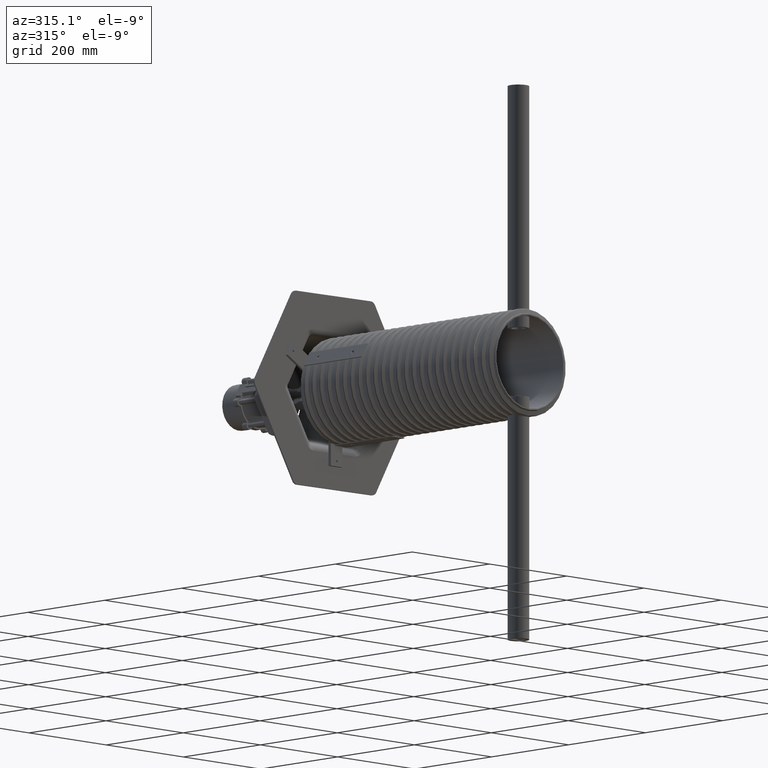
[diagram: clean part render]
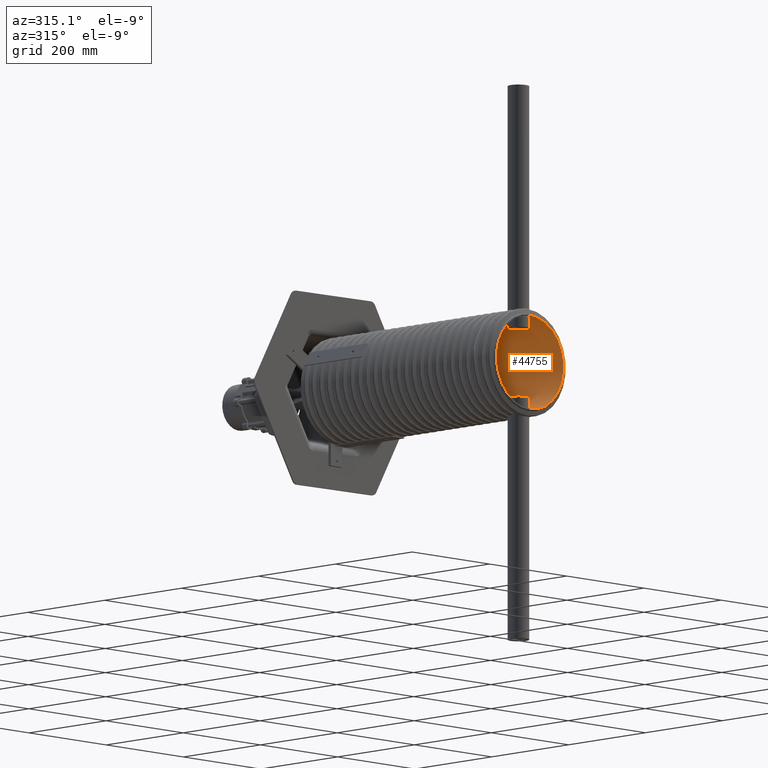
[diagram: same view with one face highlighted and labeled with its STEP entity id]
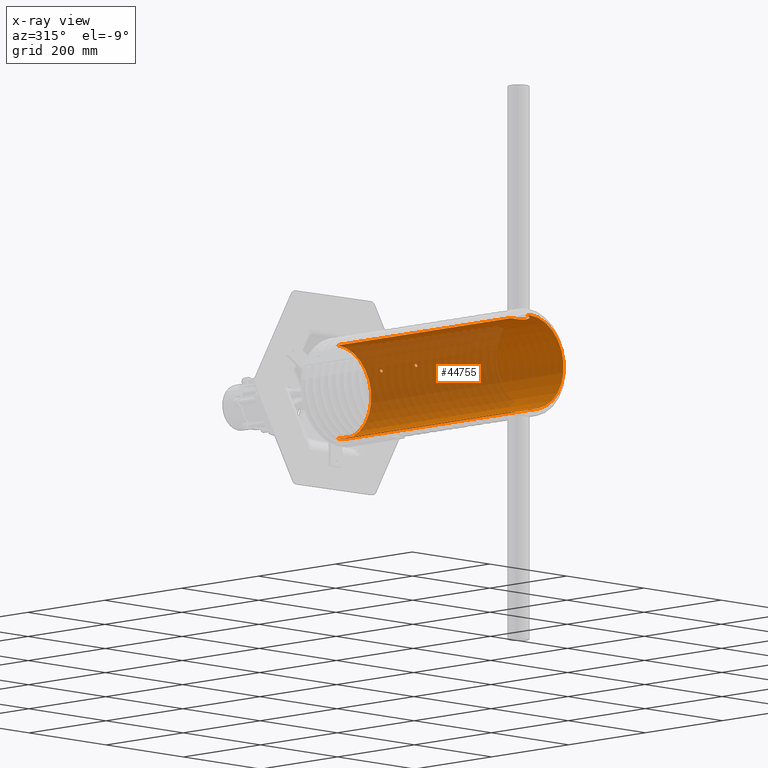
[diagram: x-ray of the same camera — body ghosted, the highlighted face saturated]
A machine part, auxiliary view. The second image highlights one B-rep face of the part: STEP entity #44755.
The next image is the same camera in x-ray: the body ghosted, the highlighted face saturated — about 63% of this face is hidden behind the body in this view.
In plain terms, the highlighted cylindrical surface (partial cylindrical patch) has radius 87 mm, axis along (0, 1, 0).
Its self-contained STEP definition (entity closure, byte-faithful):
#240 = CARTESIAN_POINT ( 'NONE',  ( 76.50852754800528999, -126.1696861162702419, 41.41807884321074340 ) ) ;
#390 = CARTESIAN_POINT ( 'NONE',  ( 74.85747038605444459, -125.1524743547578424, 44.33274442071717658 ) ) ;
#432 = EDGE_CURVE ( 'NONE', #14155, #42126, #5428, .T. ) ;
#433 = CARTESIAN_POINT ( 'NONE',  ( 17.93568807765784712, -461.1264908248124357, 85.13172591165675840 ) ) ;
#458 = CARTESIAN_POINT ( 'NONE',  ( 0.0000000000000000000, 0.0000000000000000000, 87.00000000000000000 ) ) ;
#592 = CARTESIAN_POINT ( 'NONE',  ( 9.153048669654680225, -452.2143374085724190, 86.51766697584275789 ) ) ;
#747 = CARTESIAN_POINT ( 'NONE',  ( 0.1977612686237654183, -124.9999999999999858, -87.00000000000000000 ) ) ;
#761 = CARTESIAN_POINT ( 'NONE',  ( 0.9670133609606378355, -130.8465917165744088, -86.99481306588286600 ) ) ;
#900 = CARTESIAN_POINT ( 'NONE',  ( 2.602268058680082596, -126.4943598475905588, -86.96114194050471724 ) ) ;
#906 = CIRCLE ( 'NONE', #31220, 87.00000000000000000 ) ;
#1046 = EDGE_CURVE ( 'NONE', #8157, #19798, #27075, .T. ) ;
#1281 = CARTESIAN_POINT ( 'NONE',  ( 1.065442716048124496E-14, -34.99999999999999289, -87.00000000000002842 ) ) ;
#1425 = CARTESIAN_POINT ( 'NONE',  ( 3.000000000000005773, -37.60383317793876756, -86.94826047713664252 ) ) ;
#1466 = CARTESIAN_POINT ( 'NONE',  ( 74.58135396072991341, -130.6035503350153704, 44.79563088316530184 ) ) ;
#1550 = CARTESIAN_POINT ( 'NONE',  ( 12.44619435417209274, -485.6588603546577474, 86.10550445194652980 ) ) ;
#1623 = CARTESIAN_POINT ( 'NONE',  ( 76.31515642615116235, -130.2618179307909259, 41.77339499878376472 ) ) ;
#1698 = CARTESIAN_POINT ( 'NONE',  ( 19.87258180282035624, -472.6109044968400781, 84.70035518799339513 ) ) ;
#1840 = CARTESIAN_POINT ( 'NONE',  ( 75.73064473570791222, -35.09619146409765023, 42.82413117425846849 ) ) ;
#1981 = CARTESIAN_POINT ( 'NONE',  ( 74.00964267075103464, -36.49362939127797034, 45.73384765430934351 ) ) ;
#2002 = EDGE_CURVE ( 'NONE', #31938, #14420, #5950, .T. ) ;
#2016 = CARTESIAN_POINT ( 'NONE',  ( 16.44260274255838183, -481.3906724499241250, -85.43228321057135588 ) ) ;
#2046 = CARTESIAN_POINT ( 'NONE',  ( 11.65606949360919664, -453.7345425611923702, -86.21738566143258709 ) ) ;
#2156 = CARTESIAN_POINT ( 'NONE',  ( 6.449053673449365753, -488.9430699716949107, -86.76292538942135479 ) ) ;
#2188 = CARTESIAN_POINT ( 'NONE',  ( 19.48279992951975714, -465.4335359864411430, -84.79055378684546440 ) ) ;
#2369 = CARTESIAN_POINT ( 'NONE',  ( 74.33347922500526295, -40.26006764310727704, 45.20567482684609928 ) ) ;
#2486 = EDGE_CURVE ( 'NONE', #31938, #8199, #8906, .T. ) ;
#2523 = CARTESIAN_POINT ( 'NONE',  ( 76.08514325843393067, -40.60304184144413142, 42.19096358836849703 ) ) ;
#2702 = CARTESIAN_POINT ( 'NONE',  ( 3.000000000000005329, -38.19827778290684961, -86.94826047713664252 ) ) ;
#2799 = CARTESIAN_POINT ( 'NONE',  ( 0.0000000000000000000, -500.0000000000000000, 0.0000000000000000000 ) ) ;
#2855 = CARTESIAN_POINT ( 'NONE',  ( 1.328175558697996195, -40.69706301862297693, -86.99004865439181344 ) ) ;
#3277 = VERTEX_POINT ( 'NONE', #44167 ) ;
#3449 = EDGE_CURVE ( 'NONE', #14420, #14919, #8409, .T. ) ;
#3490 = EDGE_CURVE ( 'NONE', #4430, #14919, #11066, .T. ) ;
#3805 = CARTESIAN_POINT ( 'NONE',  ( 76.31701063034780930, -125.7417889277396341, 41.77000115104774380 ) ) ;
#3885 = B_SPLINE_CURVE_WITH_KNOTS ( 'NONE', 3,
 ( #9048, #26937, #12662, #37737, #16298, #41292, #19908, #44870, #23480, #2016, #27092, #5598, #30665, #9204, #34278, #12820, #37884, #16464, #41439, #20049, #45030, #23642, #2156, #27240, #5761, #30820, #9351, #34435 ),
 .UNSPECIFIED., .F., .F.,
 ( 4, 2, 2, 2, 2, 2, 2, 2, 2, 2, 2, 2, 2, 4 ),
 ( 0.0000000000000000000, 0.003922192643568727516, 0.005883288965353091274, 0.007844385287137455032, 0.01176657793070633694, 0.01274712609159859428, 0.01372767425249085335, 0.01568877057427549987, 0.01961096321784479637, 0.02157205953962944289, 0.02353315586141409635, 0.02549425218319874287, 0.02745534850498339285, 0.03137754114855269283 ),
 .UNSPECIFIED. ) ;
#3960 = CARTESIAN_POINT ( 'NONE',  ( 74.58274914739598671, -125.3949918919166322, 44.79330421839682685 ) ) ;
#4007 = CARTESIAN_POINT ( 'NONE',  ( 16.98180350253650772, -459.4150645983413597, 85.32733462217871079 ) ) ;
#4022 = CARTESIAN_POINT ( 'NONE',  ( 3.000000000000000888, -128.1982777829068709, -86.94826047713664252 ) ) ;
#4090 = CARTESIAN_POINT ( 'NONE',  ( 76.79940238806720743, -38.00000000000000711, 40.87605402721430181 ) ) ;
#4126 = CARTESIAN_POINT ( 'NONE',  ( 0.0000000000000000000, 0.0000000000000000000, 0.0000000000000000000 ) ) ;
#4167 = CARTESIAN_POINT ( 'NONE',  ( 8.263927343287924998, -451.7841973257882842, 86.60713912971094430 ) ) ;
#4185 = CARTESIAN_POINT ( 'NONE',  ( 3.000000000000000888, -128.0000000000000000, -86.94826047713664252 ) ) ;
#4335 = CARTESIAN_POINT ( 'NONE',  ( 0.3904644600714122782, -130.9810291034154375, -86.99933940895986950 ) ) ;
#4430 = VERTEX_POINT ( 'NONE', #16022 ) ;
#4457 = EDGE_CURVE ( 'NONE', #8345, #37244, #4820, .T. ) ;
#4484 = CARTESIAN_POINT ( 'NONE',  ( 2.920420247024597682, -127.2102734355285634, -86.95109888176496327 ) ) ;
#4765 = VERTEX_POINT ( 'NONE', #458 ) ;
#4820 = B_SPLINE_CURVE_WITH_KNOTS ( 'NONE', 3,
 ( #34009, #34159, #12693, #37773, #16331, #41321, #19934, #44913, #23513, #2046, #27124, #5632, #30699, #9229, #34313, #12855, #37916, #16495, #41470, #20079, #45056, #23676, #2188, #27274, #5796, #30849 ),
 .UNSPECIFIED., .F., .F.,
 ( 4, 2, 2, 2, 2, 2, 2, 2, 2, 2, 2, 2, 4 ),
 ( 0.09410789661966965924, 0.09802708953459228491, 0.09998668599205359775, 0.1019462824495149106, 0.1058654753644375363, 0.1078250718218988491, 0.1097846682793601619, 0.1117442647368214748, 0.1137038611942827876, 0.1176230541092052745, 0.1195826505666665318, 0.1215422470241277753, 0.1254614399390502621 ),
 .UNSPECIFIED. ) ;
#4863 = CARTESIAN_POINT ( 'NONE',  ( 0.7763860699767505258, -35.09562983045843509, -86.99674659567382662 ) ) ;
#4900 = CARTESIAN_POINT ( 'NONE',  ( 73.79940238806725006, -128.1982327862185684, 46.07220644992094805 ) ) ;
#5030 = CARTESIAN_POINT ( 'NONE',  ( 20.00000000000000711, -470.0000000000000000, -84.66994744299775277 ) ) ;
#5047 = CARTESIAN_POINT ( 'NONE',  ( 74.85580443909081794, -130.8463173335569820, 44.33555159283618963 ) ) ;
#5124 = CARTESIAN_POINT ( 'NONE',  ( 13.68947363335681544, -484.5952376561857591, 85.91749047084744006 ) ) ;
#5194 = CARTESIAN_POINT ( 'NONE',  ( 76.50856317009625229, -129.8299900628122430, 41.41801024803085340 ) ) ;
#5257 = CARTESIAN_POINT ( 'NONE',  ( 76.75438500250986351, -37.22298340132054761, 40.96054022181824195 ) ) ;
#5283 = CARTESIAN_POINT ( 'NONE',  ( 20.00000000000000711, -470.0000000000000000, 84.66994744299775277 ) ) ;
#5411 = CARTESIAN_POINT ( 'NONE',  ( 75.44437575426293563, -35.00016604798047126, 43.32649659671813680 ) ) ;
#5428 = B_SPLINE_CURVE_WITH_KNOTS ( 'NONE', 3,
 ( #43132, #11060, #36151, #14702, #39709, #18309, #43286, #21892, #433, #25492, #4007, #29106, #7613, #32692, #11230, #36296, #14865, #39876, #18465, #43443, #22046, #592, #25633, #4167, #29258, #7764, #32843, #11389, #36455, #15010, #40030, #18622 ),
 .UNSPECIFIED., .F., .F.,
 ( 4, 2, 2, 2, 2, 2, 2, 2, 2, 2, 2, 2, 2, 2, 2, 4 ),
 ( 0.03137786550792306256, 0.03333796585246948108, 0.03529806619701589959, 0.03921826688610874356, 0.04117836723065515514, 0.04313846757520157366, 0.04509856791974799217, 0.04607861809202114245, 0.04705866826429428579, 0.05097886895338687302, 0.05293896929793311806, 0.05391901947020624059, 0.05489906964247936311, 0.05881927033157191564, 0.06077937067611817457, 0.06273947102066443349 ),
 .UNSPECIFIED. ) ;
#5568 = CARTESIAN_POINT ( 'NONE',  ( 73.84169468340768105, -37.20986324133727408, 46.00463697864076096 ) ) ;
#5598 = CARTESIAN_POINT ( 'NONE',  ( 15.86273847517259661, -482.1852893192017859, -85.54187958686931381 ) ) ;
#5632 = CARTESIAN_POINT ( 'NONE',  ( 13.19623296353511499, -454.9571973058318690, -85.99488191319461805 ) ) ;
#5761 = CARTESIAN_POINT ( 'NONE',  ( 4.549602195806198957, -489.4867962807920776, -86.88336742863832285 ) ) ;
#5787 = CARTESIAN_POINT ( 'NONE',  ( 76.79940238806719321, -128.0000000000000000, 40.87605402721430181 ) ) ;
#5796 = CARTESIAN_POINT ( 'NONE',  ( 20.00000000000001066, -468.6744326243409660, -84.66994744299773856 ) ) ;
#5812 = CARTESIAN_POINT ( 'NONE',  ( 73.79940238806726427, -38.19823278621854001, 46.07220644992096226 ) ) ;
#5950 = B_SPLINE_CURVE_WITH_KNOTS ( 'NONE', 3,
 ( #1281, #44123, #19155, #4863, #29942, #8449, #33531, #12078, #37164, #15721, #40709, #19311, #44281, #22888, #1425, #26499 ),
 .UNSPECIFIED., .F., .F.,
 ( 4, 2, 2, 2, 2, 2, 2, 4 ),
 ( 0.01407150590727147300, 0.01465731824862154427, 0.01524313058997161727, 0.01582894293132168853, 0.01641475527267175979, 0.01700056761402183453, 0.01758637995537190579, 0.01875800463807203097 ),
 .UNSPECIFIED. ) ;
#5959 = CARTESIAN_POINT ( 'NONE',  ( 74.58135396072991341, -40.60355033501538458, 44.79563088316532316 ) ) ;
#6045 = CARTESIAN_POINT ( 'NONE',  ( 0.0000000000000000000, 0.0000000000000000000, 87.00000000000002842 ) ) ;
#6118 = CARTESIAN_POINT ( 'NONE',  ( 76.31515642615116235, -40.26181793079090454, 41.77339499878374340 ) ) ;
#6397 = DIRECTION ( 'NONE',  ( 0.0000000000000000000, 0.0000000000000000000, 1.000000000000000000 ) ) ;
#6453 = CARTESIAN_POINT ( 'NONE',  ( 0.7778577919684809272, -40.90412366566275892, -86.99673819946036701 ) ) ;
#7026 = ORIENTED_EDGE ( 'NONE', *, *, #25109, .T. ) ;
#7334 = CARTESIAN_POINT ( 'NONE',  ( 3.000000000000000888, -128.0000000000000000, -86.94826047713664252 ) ) ;
#7413 = CARTESIAN_POINT ( 'NONE',  ( 76.08520940629190932, -125.3969834340961143, 42.19084642360594017 ) ) ;
#7565 = CARTESIAN_POINT ( 'NONE',  ( 74.33413251984855208, -125.7388231767254894, 45.20460098260357995 ) ) ;
#7613 = CARTESIAN_POINT ( 'NONE',  ( 15.87111535922370820, -457.8125865414918394, 85.54112789394520178 ) ) ;
#7764 = CARTESIAN_POINT ( 'NONE',  ( 6.454884838655692292, -451.0251785316796713, 86.76868292252339643 ) ) ;
#7785 = CARTESIAN_POINT ( 'NONE',  ( 2.846552530201100328, -128.9673828551963766, -86.95345203496104602 ) ) ;
#7926 = CARTESIAN_POINT ( 'NONE',  ( 0.3932834549787793677, -125.0194850217761484, -86.99932196106804838 ) ) ;
#7940 = CARTESIAN_POINT ( 'NONE',  ( 1.065442721291840705E-14, -131.0000000000000000, -87.00000000000002842 ) ) ;
#8085 = CARTESIAN_POINT ( 'NONE',  ( 3.000000000000000888, -128.0000000000000000, -86.94826047713664252 ) ) ;
#8157 = VERTEX_POINT ( 'NONE', #5787 ) ;
#8199 = VERTEX_POINT ( 'NONE', #20383 ) ;
#8345 = VERTEX_POINT ( 'NONE', #10635 ) ;
#8409 = B_SPLINE_CURVE_WITH_KNOTS ( 'NONE', 3,
 ( #27786, #2702, #31352, #9899, #34988, #13521, #38557, #17158, #42134, #20737, #45712, #24340, #2855, #27941, #6453, #31504, #10046, #35136 ),
 .UNSPECIFIED., .F., .F.,
 ( 4, 2, 2, 2, 2, 2, 2, 2, 4 ),
 ( 0.0000000000000000000, 0.0005863871771897364703, 0.001172774354379472941, 0.001759161531569209411, 0.002345548708758945881, 0.002931935885948682569, 0.003518323063138418822, 0.004104710240328155076, 0.004691097417517891763 ),
 .UNSPECIFIED. ) ;
#8449 = CARTESIAN_POINT ( 'NONE',  ( 1.329955233623715483, -35.30371981811131121, -86.99002392546769613 ) ) ;
#8484 = CARTESIAN_POINT ( 'NONE',  ( 73.80971652638993419, -128.3931496600908417, 46.05569672196235587 ) ) ;
#8495 = EDGE_CURVE ( 'NONE', #34463, #40103, #36951, .T. ) ;
#8574 = CARTESIAN_POINT ( 'NONE',  ( 4.552415771729019234, -489.4859548076487386, 86.88317981998778805 ) ) ;
#8652 = CARTESIAN_POINT ( 'NONE',  ( 75.14791676317973668, -130.9808994648600446, 43.83865996970049395 ) ) ;
#8735 = CARTESIAN_POINT ( 'NONE',  ( 15.89413165341288448, -482.2108768043417513, 85.53906183110785832 ) ) ;
#8811 = CARTESIAN_POINT ( 'NONE',  ( 76.65624155491612157, -129.3297224775155883, 41.14397046377807499 ) ) ;
#8869 = CARTESIAN_POINT ( 'NONE',  ( 76.65666974050583349, -36.67232357190236058, 41.14317161944785539 ) ) ;
#8906 = LINE ( 'NONE', #16139, #36392 ) ;
#9021 = CARTESIAN_POINT ( 'NONE',  ( 75.14811365699011958, -35.01918281462521065, 43.83831378645773924 ) ) ;
#9048 = CARTESIAN_POINT ( 'NONE',  ( 20.00000000000000711, -470.0000000000000000, -84.66994744299775277 ) ) ;
#9122 = ORIENTED_EDGE ( 'NONE', *, *, #2002, .T. ) ;
#9176 = CARTESIAN_POINT ( 'NONE',  ( 73.79940238806725006, -38.00000000000000711, 46.07220644992096226 ) ) ;
#9204 = CARTESIAN_POINT ( 'NONE',  ( 15.03457257848562634, -483.2057629161959085, -85.69212832042096295 ) ) ;
#9229 = CARTESIAN_POINT ( 'NONE',  ( 14.59621513080994148, -456.3116166269289238, -85.76810036495584200 ) ) ;
#9236 = B_SPLINE_CURVE_WITH_KNOTS ( 'NONE', 3,
 ( #23137, #44529, #26750, #5257, #30341, #8869, #33952, #12474, #37554, #16115, #41117, #19726, #44679, #23299, #1840, #26904, #5411, #30502, #9021, #34096, #12634, #37704, #16269, #41263, #19877, #44847, #23457, #1981, #27057, #5568, #30639, #9176 ),
 .UNSPECIFIED., .F., .F.,
 ( 4, 2, 2, 2, 2, 2, 2, 2, 2, 2, 2, 2, 2, 2, 2, 4 ),
 ( 0.009380065662061867066, 0.009966186848062500575, 0.01055230803406313408, 0.01113842922006376759, 0.01172455040606439937, 0.01231067159206503288, 0.01289679277806566639, 0.01348291396406629990, 0.01406903515006693167, 0.01465515633606756518, 0.01524127752206819869, 0.01582739870806883220, 0.01641351989406946571, 0.01699964108007009922, 0.01758576226607073273, 0.01875800463807199628 ),
 .UNSPECIFIED. ) ;
#9351 = CARTESIAN_POINT ( 'NONE',  ( 1.309825171448685932, -490.0000000000001705, -87.00000000000004263 ) ) ;
#9395 = ORIENTED_EDGE ( 'NONE', *, *, #432, .T. ) ;
#9501 = DIRECTION ( 'NONE',  ( -0.0000000000000000000, 1.000000000000000000, -0.0000000000000000000 ) ) ;
#9565 = CARTESIAN_POINT ( 'NONE',  ( 74.85580443909074688, -40.84631733355695360, 44.33555159283618963 ) ) ;
#9717 = CARTESIAN_POINT ( 'NONE',  ( 76.50856317009625229, -39.82999006281225718, 41.41801024803083919 ) ) ;
#9899 = CARTESIAN_POINT ( 'NONE',  ( 2.904276259442632568, -38.77679632077867922, -86.95151887674923330 ) ) ;
#10046 = CARTESIAN_POINT ( 'NONE',  ( 0.1957350792040908061, -41.00000000000000000, -87.00000000000002842 ) ) ;
#10056 = ORIENTED_EDGE ( 'NONE', *, *, #39168, .T. ) ;
#10131 = CYLINDRICAL_SURFACE ( 'NONE', #19567, 87.00000000000002842 ) ;
#10279 = EDGE_CURVE ( 'NONE', #19798, #8157, #33028, .T. ) ;
#10432 = AXIS2_PLACEMENT_3D ( 'NONE', #2799, #27884, #6397 ) ;
#10635 = CARTESIAN_POINT ( 'NONE',  ( 1.063745155831758435E-14, -449.9999999999999432, -87.00000000000002842 ) ) ;
#10687 = ORIENTED_EDGE ( 'NONE', *, *, #15347, .F. ) ;
#11015 = CARTESIAN_POINT ( 'NONE',  ( 75.82434590255604689, -125.1541199586312700, 42.65795904007651984 ) ) ;
#11060 = CARTESIAN_POINT ( 'NONE',  ( 20.00000000000000355, -469.3454529708039900, 84.66994744299775277 ) ) ;
#11066 = LINE ( 'NONE', #42286, #38533 ) ;
#11173 = CARTESIAN_POINT ( 'NONE',  ( 74.12471874090687152, -126.1664020456541095, 45.54709761446144256 ) ) ;
#11230 = CARTESIAN_POINT ( 'NONE',  ( 15.03680291996756324, -456.8090160800728086, 85.69098264823465172 ) ) ;
#11268 = FACE_BOUND ( 'NONE', #20283, .T. ) ;
#11389 = CARTESIAN_POINT ( 'NONE',  ( 3.278230018686332237, -450.2595952755725079, 86.94059969439435065 ) ) ;
#11409 = CARTESIAN_POINT ( 'NONE',  ( 2.603662751964805455, -129.5031304939267898, -86.96109943126580788 ) ) ;
#11541 = CARTESIAN_POINT ( 'NONE',  ( 0.9664296006202856004, -125.1531207314440195, -86.99482201432405759 ) ) ;
#11590 = EDGE_CURVE ( 'NONE', #42126, #4765, #31411, .T. ) ;
#11962 = CARTESIAN_POINT ( 'NONE',  ( 73.79940238806726427, -128.0000000000000000, 46.07220644992096226 ) ) ;
#11973 = ORIENTED_EDGE ( 'NONE', *, *, #37967, .F. ) ;
#12078 = CARTESIAN_POINT ( 'NONE',  ( 1.827883023717659983, -35.61312582596917053, -86.98094833108328316 ) ) ;
#12116 = CARTESIAN_POINT ( 'NONE',  ( 73.88058512205020634, -128.9671681103031347, 45.94197230440191504 ) ) ;
#12194 = CARTESIAN_POINT ( 'NONE',  ( 6.446876492459776564, -488.9438862687932783, 86.76310259039173900 ) ) ;
#12263 = CARTESIAN_POINT ( 'NONE',  ( 75.44152265598053475, -131.0000693487146464, 43.33145454215289760 ) ) ;
#12350 = CARTESIAN_POINT ( 'NONE',  ( 17.32928541080693563, -480.0061066625700619, 85.25722672185770534 ) ) ;
#12351 = DIRECTION ( 'NONE',  ( -0.0000000000000000000, 1.000000000000000000, -0.0000000000000000000 ) ) ;
#12418 = CARTESIAN_POINT ( 'NONE',  ( 76.75408782920408157, -128.7790907283381614, 40.96109707243764575 ) ) ;
#12474 = CARTESIAN_POINT ( 'NONE',  ( 76.50852754800526156, -36.16968611627021346, 41.41807884321073630 ) ) ;
#12634 = CARTESIAN_POINT ( 'NONE',  ( 74.85747038605437353, -35.15247435475782112, 44.33274442071719079 ) ) ;
#12662 = CARTESIAN_POINT ( 'NONE',  ( 19.86932935718193605, -472.6300672915212431, -84.70111310406073812 ) ) ;
#12693 = CARTESIAN_POINT ( 'NONE',  ( 2.619961150343538048, -450.1292549473155304, -86.97002176340042467 ) ) ;
#12820 = CARTESIAN_POINT ( 'NONE',  ( 13.21641345727041994, -485.0670808111260044, -85.99532151259552393 ) ) ;
#12855 = CARTESIAN_POINT ( 'NONE',  ( 15.86064401229919696, -457.7989936424120287, -85.54307023905913354 ) ) ;
#13028 = CARTESIAN_POINT ( 'NONE',  ( 73.80971652638991998, -38.39314966009087016, 46.05569672196235587 ) ) ;
#13039 = CARTESIAN_POINT ( 'NONE',  ( 1.065442715258197524E-14, 0.0000000000000000000, -87.00000000000002842 ) ) ;
#13193 = CARTESIAN_POINT ( 'NONE',  ( 75.14791676317973668, -40.98089946486001622, 43.83865996970049395 ) ) ;
#13345 = CARTESIAN_POINT ( 'NONE',  ( 76.65624155491616420, -39.32972247751556694, 41.14397046377807499 ) ) ;
#13521 = CARTESIAN_POINT ( 'NONE',  ( 2.695869573999903235, -39.33078102470084048, -86.95825417603235508 ) ) ;
#13571 = VERTEX_POINT ( 'NONE', #4090 ) ;
#14057 = CARTESIAN_POINT ( 'NONE',  ( 73.79940238806725006, -38.00000000000000711, 46.07220644992096226 ) ) ;
#14155 = VERTEX_POINT ( 'NONE', #40046 ) ;
#14420 = VERTEX_POINT ( 'NONE', #24080 ) ;
#14495 = CARTESIAN_POINT ( 'NONE',  ( 76.79940238806719321, -128.0000000000000000, 40.87605402721430181 ) ) ;
#14568 = CARTESIAN_POINT ( 'NONE',  ( 73.79940238806726427, -128.0000000000000000, 46.07220644992096226 ) ) ;
#14656 = CARTESIAN_POINT ( 'NONE',  ( 75.54115247530934596, -125.0197078249870373, 43.15751435866254582 ) ) ;
#14702 = CARTESIAN_POINT ( 'NONE',  ( 19.83748455329809701, -467.3707986025272589, 84.70819734229991127 ) ) ;
#14814 = CARTESIAN_POINT ( 'NONE',  ( 73.96033536175043821, -126.6685945314221726, 45.81347419145316024 ) ) ;
#14865 = CARTESIAN_POINT ( 'NONE',  ( 14.36887743971917430, -456.0844374039774038, 85.80553956706694407 ) ) ;
#14919 = VERTEX_POINT ( 'NONE', #38691 ) ;
#15010 = CARTESIAN_POINT ( 'NONE',  ( 1.308676280650063584, -450.0319726820615642, 86.99263266915005488 ) ) ;
#15028 = CARTESIAN_POINT ( 'NONE',  ( 2.259031727146277202, -129.9837076864392316, -86.97077647705549452 ) ) ;
#15172 = CARTESIAN_POINT ( 'NONE',  ( 1.502188651247658102, -125.3958199126954725, -86.98718272354290093 ) ) ;
#15347 = EDGE_CURVE ( 'NONE', #35611, #25483, #18194, .T. ) ;
#15575 = B_SPLINE_CURVE_WITH_KNOTS ( 'NONE', 3,
 ( #25792, #747, #7926, #32996, #11541, #36618, #15172, #40179, #18788, #43756, #22344, #900, #25954, #4484, #29561, #8085 ),
 .UNSPECIFIED., .F., .F.,
 ( 4, 2, 2, 2, 2, 2, 2, 4 ),
 ( 0.01407150590727147994, 0.01465731824862153906, 0.01524313058997159992, 0.01582894293132165731, 0.01641475527267171816, 0.01700056761402177902, 0.01758637995537183640, 0.01875800463807203444 ),
 .UNSPECIFIED. ) ;
#15620 = EDGE_CURVE ( 'NONE', #4430, #34463, #15575, .T. ) ;
#15721 = CARTESIAN_POINT ( 'NONE',  ( 2.259108242737366101, -36.01638582184538251, -86.97077440326684439 ) ) ;
#15758 = CARTESIAN_POINT ( 'NONE',  ( 74.00859791401364873, -129.5028216664077831, 45.73553649436839663 ) ) ;
#15837 = CARTESIAN_POINT ( 'NONE',  ( 8.887061375591693846, -487.9649167705670152, 86.55343207753504942 ) ) ;
#15864 = LINE ( 'NONE', #17074, #24243 ) ;
#15914 = CARTESIAN_POINT ( 'NONE',  ( 75.73046701392281932, -130.9039507468424119, 42.82444843619278174 ) ) ;
#15989 = CARTESIAN_POINT ( 'NONE',  ( 18.22357876429281376, -478.2659057817798498, 85.07036139988984758 ) ) ;
#16022 = CARTESIAN_POINT ( 'NONE',  ( 1.065442716031716189E-14, -125.0000000000000000, -87.00000000000002842 ) ) ;
#16060 = CARTESIAN_POINT ( 'NONE',  ( 76.79940238806722164, -128.1958038405141735, 40.87605402721430892 ) ) ;
#16115 = CARTESIAN_POINT ( 'NONE',  ( 76.31701063034780930, -35.74178892773961991, 41.77000115104772959 ) ) ;
#16139 = CARTESIAN_POINT ( 'NONE',  ( 1.065442715258197524E-14, 0.0000000000000000000, -87.00000000000002842 ) ) ;
#16269 = CARTESIAN_POINT ( 'NONE',  ( 74.58274914739595829, -35.39499189191658957, 44.79330421839681975 ) ) ;
#16298 = CARTESIAN_POINT ( 'NONE',  ( 19.32674222794570440, -475.1874856049225855, -84.82638459885380655 ) ) ;
#16331 = CARTESIAN_POINT ( 'NONE',  ( 5.181032938413754785, -450.6714329994567834, -86.84790388004643091 ) ) ;
#16464 = CARTESIAN_POINT ( 'NONE',  ( 10.57214535552478374, -486.9900586151105699, -86.35701146036362275 ) ) ;
#16495 = CARTESIAN_POINT ( 'NONE',  ( 17.34978779493604151, -459.9645217099201773, -85.25572906038134136 ) ) ;
#16521 = LINE ( 'NONE', #44941, #27145 ) ;
#16666 = CARTESIAN_POINT ( 'NONE',  ( 73.88058512205020634, -38.96716811030312044, 45.94197230440192214 ) ) ;
#16823 = CARTESIAN_POINT ( 'NONE',  ( 75.44152265598053475, -41.00006934871470321, 43.33145454215289760 ) ) ;
#16979 = CARTESIAN_POINT ( 'NONE',  ( 76.75408782920410999, -38.77909072833811877, 40.96109707243762443 ) ) ;
#17074 = CARTESIAN_POINT ( 'NONE',  ( 1.065442715258197524E-14, 0.0000000000000000000, -87.00000000000002842 ) ) ;
#17158 = CARTESIAN_POINT ( 'NONE',  ( 2.385816412841615719, -39.82930070025603442, -86.96734878139427849 ) ) ;
#17815 = ORIENTED_EDGE ( 'NONE', *, *, #15620, .T. ) ;
#18108 = CARTESIAN_POINT ( 'NONE',  ( 76.72725056532677002, -127.0333639042235347, 41.01139606618975364 ) ) ;
#18194 = CIRCLE ( 'NONE', #10432, 87.00000000000004263 ) ;
#18261 = CARTESIAN_POINT ( 'NONE',  ( 75.24654654386196739, -124.9998360388579357, 43.66916959959588240 ) ) ;
#18309 = CARTESIAN_POINT ( 'NONE',  ( 19.35463945344871206, -464.7930587308597410, 84.82020645111926171 ) ) ;
#18413 = CARTESIAN_POINT ( 'NONE',  ( 73.79940238806725006, -127.6036243158252574, 46.07220644992096226 ) ) ;
#18465 = CARTESIAN_POINT ( 'NONE',  ( 12.20405441609415931, -454.1017776374173422, 86.14667400072185899 ) ) ;
#18622 = CARTESIAN_POINT ( 'NONE',  ( -8.690192706110534338E-21, -449.9999999999999432, 87.00000000000002842 ) ) ;
#18646 = CARTESIAN_POINT ( 'NONE',  ( 1.830979428494086347, -130.3846284622217979, -86.98088549283956183 ) ) ;
#18712 = ORIENTED_EDGE ( 'NONE', *, *, #21090, .F. ) ;
#18788 = CARTESIAN_POINT ( 'NONE',  ( 1.982276411353747658, -125.7397178297455014, -86.97752439903841548 ) ) ;
#18870 = ORIENTED_EDGE ( 'NONE', *, *, #8495, .T. ) ;
#19092 = CARTESIAN_POINT ( 'NONE',  ( -8.690192706110534338E-21, -449.9999999999999432, 87.00000000000002842 ) ) ;
#19155 = CARTESIAN_POINT ( 'NONE',  ( 0.3932834549787774248, -35.01948502177612710, -86.99932196106803417 ) ) ;
#19311 = CARTESIAN_POINT ( 'NONE',  ( 2.602268058680075935, -36.49435984759050200, -86.96114194050473145 ) ) ;
#19351 = CARTESIAN_POINT ( 'NONE',  ( 74.18921739149865857, -129.9833362210781900, 45.44204213150846527 ) ) ;
#19434 = CARTESIAN_POINT ( 'NONE',  ( 11.39145300411179029, -486.4420625262272893, 86.25143293087305096 ) ) ;
#19509 = CARTESIAN_POINT ( 'NONE',  ( 75.99981041618447364, -130.6970129253573987, 42.34456055721732071 ) ) ;
#19567 = AXIS2_PLACEMENT_3D ( 'NONE', #4126, #32649, #22001 ) ;
#19586 = CARTESIAN_POINT ( 'NONE',  ( 18.94318157767786559, -476.4487187474474013, 84.91286216710545887 ) ) ;
#19726 = CARTESIAN_POINT ( 'NONE',  ( 76.08520940629190932, -35.39698343409607872, 42.19084642360594017 ) ) ;
#19798 = VERTEX_POINT ( 'NONE', #14568 ) ;
#19877 = CARTESIAN_POINT ( 'NONE',  ( 74.33413251984853787, -35.73882317672547515, 45.20460098260359416 ) ) ;
#19908 = CARTESIAN_POINT ( 'NONE',  ( 18.71972115362246214, -477.0711701160582265, -84.96256988888856654 ) ) ;
#19934 = CARTESIAN_POINT ( 'NONE',  ( 7.064594847878960415, -451.2778712614974665, -86.71480984849088713 ) ) ;
#20049 = CARTESIAN_POINT ( 'NONE',  ( 8.855154533623361246, -487.9447108671516844, -86.55011135078153472 ) ) ;
#20079 = CARTESIAN_POINT ( 'NONE',  ( 18.71472867607998580, -462.9159941273674121, -84.96366590386655560 ) ) ;
#20252 = CARTESIAN_POINT ( 'NONE',  ( 74.00859791401364873, -39.50282166640779025, 45.73553649436840374 ) ) ;
#20283 = EDGE_LOOP ( 'NONE', ( #44206, #41173 ) ) ;
#20383 = CARTESIAN_POINT ( 'NONE',  ( 1.065442715258197367E-14, 0.0000000000000000000, -87.00000000000000000 ) ) ;
#20410 = CARTESIAN_POINT ( 'NONE',  ( 75.73046701392281932, -40.90395074684244037, 42.82444843619278174 ) ) ;
#20559 = CARTESIAN_POINT ( 'NONE',  ( 76.79940238806719321, -38.19580384051417354, 40.87605402721430181 ) ) ;
#20737 = CARTESIAN_POINT ( 'NONE',  ( 1.982091530921936240, -40.26044988719925755, -86.97752869867736081 ) ) ;
#21008 = ORIENTED_EDGE ( 'NONE', *, *, #29802, .T. ) ;
#21090 = EDGE_CURVE ( 'NONE', #8345, #40103, #25055, .T. ) ;
#21692 = CARTESIAN_POINT ( 'NONE',  ( 76.61277069364122383, -126.4982106329325120, 41.22493674064100588 ) ) ;
#21842 = CARTESIAN_POINT ( 'NONE',  ( 74.95421263033217940, -125.0950905450511357, 44.16902478899427820 ) ) ;
#21892 = CARTESIAN_POINT ( 'NONE',  ( 18.21962737294205326, -461.7249487878594891, 85.07121474615111367 ) ) ;
#21957 = ORIENTED_EDGE ( 'NONE', *, *, #11590, .T. ) ;
#22001 = DIRECTION ( 'NONE',  ( 0.0000000000000000000, 0.0000000000000000000, 1.000000000000000000 ) ) ;
#22046 = CARTESIAN_POINT ( 'NONE',  ( 10.02251858750657654, -452.6800260905570212, 86.42273495285058971 ) ) ;
#22207 = CARTESIAN_POINT ( 'NONE',  ( 1.328175558697991088, -130.6970630186229698, -86.99004865439181344 ) ) ;
#22344 = CARTESIAN_POINT ( 'NONE',  ( 2.383208349763799472, -126.1672236144607524, -86.96742105298658032 ) ) ;
#22888 = CARTESIAN_POINT ( 'NONE',  ( 2.920420247024601679, -37.21027343552858468, -86.95109888176494906 ) ) ;
#22923 = CARTESIAN_POINT ( 'NONE',  ( 74.41191192994477888, -130.3842467563464709, 45.07653788576293152 ) ) ;
#23002 = CARTESIAN_POINT ( 'NONE',  ( 12.18609127885416932, -485.8621227960242095, 86.14273024893560660 ) ) ;
#23083 = CARTESIAN_POINT ( 'NONE',  ( 76.24230152971249197, -130.3858190896615383, 41.90629893731784961 ) ) ;
#23104 = EDGE_LOOP ( 'NONE', ( #11973, #10687, #41938, #10056, #9395, #21957, #7026, #24188, #9122, #45334, #41199, #17815, #18870, #18712, #25299, #21008 ) ) ;
#23137 = CARTESIAN_POINT ( 'NONE',  ( 76.79940238806720743, -38.00000000000000711, 40.87605402721430181 ) ) ;
#23165 = CARTESIAN_POINT ( 'NONE',  ( 19.48683228377942811, -474.5494450204614623, 84.78962664538839533 ) ) ;
#23299 = CARTESIAN_POINT ( 'NONE',  ( 75.82434590255603268, -35.15411995863131978, 42.65795904007651984 ) ) ;
#23457 = CARTESIAN_POINT ( 'NONE',  ( 74.12471874090688573, -36.16640204565412375, 45.54709761446144256 ) ) ;
#23480 = CARTESIAN_POINT ( 'NONE',  ( 17.35022074853515406, -480.0337182018358249, -85.25559824616101423 ) ) ;
#23513 = CARTESIAN_POINT ( 'NONE',  ( 10.02216370289576730, -452.6427974129937866, -86.42778731426926697 ) ) ;
#23547 = DIRECTION ( 'NONE',  ( -0.0000000000000000000, 1.000000000000000000, -0.0000000000000000000 ) ) ;
#23642 = CARTESIAN_POINT ( 'NONE',  ( 7.063398055590781155, -488.7225141374667601, -86.71489532539015954 ) ) ;
#23676 = CARTESIAN_POINT ( 'NONE',  ( 19.32076070964772896, -464.7902530329332080, -84.82774908021033866 ) ) ;
#23848 = CARTESIAN_POINT ( 'NONE',  ( 74.18921739149865857, -39.98333622107818286, 45.44204213150847949 ) ) ;
#23994 = VERTEX_POINT ( 'NONE', #14057 ) ;
#24005 = CARTESIAN_POINT ( 'NONE',  ( 75.99981041618447364, -40.69701292535741288, 42.34456055721732071 ) ) ;
#24080 = CARTESIAN_POINT ( 'NONE',  ( 3.000000000000005773, -38.00000000000000000, -86.94826047713664252 ) ) ;
#24188 = ORIENTED_EDGE ( 'NONE', *, *, #2486, .F. ) ;
#24243 = VECTOR ( 'NONE', #35045, 1000.000000000000000 ) ;
#24340 = CARTESIAN_POINT ( 'NONE',  ( 1.502852007445170113, -40.60391520870494020, -86.98717355236777848 ) ) ;
#24540 = ORIENTED_EDGE ( 'NONE', *, *, #45933, .T. ) ;
#25055 = LINE ( 'NONE', #13039, #34583 ) ;
#25109 = EDGE_CURVE ( 'NONE', #4765, #8199, #906, .T. ) ;
#25281 = CARTESIAN_POINT ( 'NONE',  ( 76.44935817606007333, -126.0185571830292588, 41.52727708602657231 ) ) ;
#25299 = ORIENTED_EDGE ( 'NONE', *, *, #4457, .T. ) ;
#25435 = CARTESIAN_POINT ( 'NONE',  ( 74.67139823330761317, -125.3029380678984381, 44.64544082383363133 ) ) ;
#25483 = VERTEX_POINT ( 'NONE', #29093 ) ;
#25492 = CARTESIAN_POINT ( 'NONE',  ( 17.31739205085583677, -459.9732355937658212, 85.25964811136300625 ) ) ;
#25507 = CARTESIAN_POINT ( 'NONE',  ( 2.980536338121446249, -128.3932381622821026, -86.94893822642106329 ) ) ;
#25633 = CARTESIAN_POINT ( 'NONE',  ( 8.857833680266107734, -452.0654873304653734, 86.54841319088986040 ) ) ;
#25792 = CARTESIAN_POINT ( 'NONE',  ( 1.065442716031716189E-14, -125.0000000000000000, -87.00000000000002842 ) ) ;
#25808 = CARTESIAN_POINT ( 'NONE',  ( 0.7778577919684781516, -130.9041236656627518, -86.99673819946038122 ) ) ;
#25954 = CARTESIAN_POINT ( 'NONE',  ( 2.695778554777918945, -126.6692451014310734, -86.95825659921560202 ) ) ;
#26293 = CARTESIAN_POINT ( 'NONE',  ( 1.326567216152747974, -490.0000000000000568, 87.00000000000004263 ) ) ;
#26348 = B_SPLINE_CURVE_WITH_KNOTS ( 'NONE', 3,
 ( #37788, #5812, #13028, #38077, #16666, #41648, #20252, #45219, #23848, #2369, #27458, #5959, #31025, #9565, #34638, #13193, #38237, #16823, #41803, #20410, #45363, #24005, #2523, #27604, #6118, #31178, #9717, #34800, #13345, #38390, #16979, #41952, #20559, #45529 ),
 .UNSPECIFIED., .F., .F.,
 ( 4, 2, 2, 2, 2, 2, 2, 2, 2, 2, 2, 2, 2, 2, 2, 2, 4 ),
 ( 0.0000000000000000000, 0.0005862541038788666916, 0.001172508207757733383, 0.001758762311636600075, 0.002345016415515466766, 0.002931270519394333675, 0.003517524623273200150, 0.004103778727152066624, 0.004690032831030933533, 0.005276286934909800441, 0.005862541038788667350, 0.006448795142667533391, 0.007035049246546400299, 0.007621303350425267208, 0.008207557454304133249, 0.008793811558183000157, 0.009380065662061867066 ),
 .UNSPECIFIED. ) ;
#26499 = CARTESIAN_POINT ( 'NONE',  ( 3.000000000000005773, -38.00000000000000000, -86.94826047713664252 ) ) ;
#26535 = CARTESIAN_POINT ( 'NONE',  ( 74.67115675448698653, -130.6967263988083516, 44.64583902460869780 ) ) ;
#26611 = CARTESIAN_POINT ( 'NONE',  ( 13.20663325987711545, -485.0338113588372266, 85.99329881591437186 ) ) ;
#26687 = CARTESIAN_POINT ( 'NONE',  ( 76.44930644313291168, -129.9818178777206015, 41.52737861262482255 ) ) ;
#26750 = CARTESIAN_POINT ( 'NONE',  ( 76.79048662508650125, -37.60967540099149176, 40.89281888374914331 ) ) ;
#26769 = CARTESIAN_POINT ( 'NONE',  ( 20.00000000000001421, -471.3097727820329510, 84.66994744299775277 ) ) ;
#26904 = CARTESIAN_POINT ( 'NONE',  ( 75.54115247530936017, -35.01970782498703727, 43.15751435866253871 ) ) ;
#26937 = CARTESIAN_POINT ( 'NONE',  ( 20.00000000000001421, -471.3265819576192257, -84.66994744299776698 ) ) ;
#27057 = CARTESIAN_POINT ( 'NONE',  ( 73.96033536175039558, -36.66859453142214420, 45.81347419145315314 ) ) ;
#27075 = B_SPLINE_CURVE_WITH_KNOTS ( 'NONE', 3,
 ( #14495, #35943, #32334, #39523, #18108, #43080, #21692, #240, #25281, #3805, #28913, #7413, #32483, #11015, #36103, #14656, #39670, #18261, #43236, #21842, #390, #25435, #3960, #29065, #7565, #32647, #11173, #36251, #14814, #39825, #18413, #43396 ),
 .UNSPECIFIED., .F., .F.,
 ( 4, 2, 2, 2, 2, 2, 2, 2, 2, 2, 2, 2, 2, 2, 2, 4 ),
 ( 0.009380065662061854923, 0.009966186848062483228, 0.01055230803406310980, 0.01113842922006373810, 0.01172455040606436641, 0.01231067159206499471, 0.01289679277806562302, 0.01348291396406624959, 0.01406903515006687790, 0.01465515633606750620, 0.01524127752206813277, 0.01582739870806876281, 0.01641351989406938938, 0.01699964108007001595, 0.01758576226607064252, 0.01875800463807197546 ),
 .UNSPECIFIED. ) ;
#27092 = CARTESIAN_POINT ( 'NONE',  ( 16.25406868726553355, -481.6581730487254163, -85.46838530296351166 ) ) ;
#27124 = CARTESIAN_POINT ( 'NONE',  ( 12.18679603846159409, -454.1283750157554664, -86.14373036970894759 ) ) ;
#27145 = VECTOR ( 'NONE', #23547, 1000.000000000000000 ) ;
#27240 = CARTESIAN_POINT ( 'NONE',  ( 5.194072442968593606, -489.3249011560927784, -86.84709049168269246 ) ) ;
#27274 = CARTESIAN_POINT ( 'NONE',  ( 19.86949840125884137, -467.3672485864288433, -84.70108058092807823 ) ) ;
#27458 = CARTESIAN_POINT ( 'NONE',  ( 74.41191192994477888, -40.38424675634648509, 45.07653788576294573 ) ) ;
#27533 = DIRECTION ( 'NONE',  ( -0.0000000000000000000, 1.000000000000000000, -0.0000000000000000000 ) ) ;
#27604 = CARTESIAN_POINT ( 'NONE',  ( 76.24230152971249197, -40.38581908966158096, 41.90629893731784961 ) ) ;
#27786 = CARTESIAN_POINT ( 'NONE',  ( 3.000000000000005773, -38.00000000000000000, -86.94826047713664252 ) ) ;
#27884 = DIRECTION ( 'NONE',  ( -0.0000000000000000000, 1.000000000000000000, -0.0000000000000000000 ) ) ;
#27941 = CARTESIAN_POINT ( 'NONE',  ( 0.9670133609606416103, -40.84659171657439458, -86.99481306588282337 ) ) ;
#28913 = CARTESIAN_POINT ( 'NONE',  ( 76.24289715199158479, -125.6150706057248811, 41.90521741037056813 ) ) ;
#29065 = CARTESIAN_POINT ( 'NONE',  ( 74.41436665575851350, -125.6122360639628539, 45.07248172008696940 ) ) ;
#29093 = CARTESIAN_POINT ( 'NONE',  ( 1.065442715258197840E-14, -500.0000000000000000, -87.00000000000004263 ) ) ;
#29106 = CARTESIAN_POINT ( 'NONE',  ( 16.25866558600420930, -458.3347395649077498, 85.46807285347264838 ) ) ;
#29258 = CARTESIAN_POINT ( 'NONE',  ( 7.964475106133751758, -451.6513223082435502, 86.63520648923932299 ) ) ;
#29276 = CARTESIAN_POINT ( 'NONE',  ( 2.904276259442625907, -128.7767963207786863, -86.95151887674923330 ) ) ;
#29428 = CARTESIAN_POINT ( 'NONE',  ( 0.1957350792040912502, -131.0000000000000284, -87.00000000000002842 ) ) ;
#29561 = CARTESIAN_POINT ( 'NONE',  ( 3.000000000000000888, -127.6038331779387818, -86.94826047713664252 ) ) ;
#29713 = CARTESIAN_POINT ( 'NONE',  ( 1.065442721543171790E-14, -490.0000000000000000, -87.00000000000002842 ) ) ;
#29802 = EDGE_CURVE ( 'NONE', #37244, #40673, #3885, .T. ) ;
#29942 = CARTESIAN_POINT ( 'NONE',  ( 0.9664296006202920397, -35.15312073144402660, -86.99482201432405759 ) ) ;
#29990 = CARTESIAN_POINT ( 'NONE',  ( 1.065442716048124496E-14, -34.99999999999999289, -87.00000000000002842 ) ) ;
#30051 = CARTESIAN_POINT ( 'NONE',  ( 2.630089170235748064, -489.8693313288165427, 86.96969777411382552 ) ) ;
#30124 = CARTESIAN_POINT ( 'NONE',  ( 74.95201164404043936, -130.9038864988685020, 44.17276822088961552 ) ) ;
#30204 = CARTESIAN_POINT ( 'NONE',  ( 15.06791242405785880, -483.2154688746402940, 85.69028792020151286 ) ) ;
#30280 = CARTESIAN_POINT ( 'NONE',  ( 76.61180223795257405, -129.5050511293385398, 41.22673367017380741 ) ) ;
#30325 = FACE_BOUND ( 'NONE', #35186, .T. ) ;
#30341 = CARTESIAN_POINT ( 'NONE',  ( 76.72725056532678423, -37.03336390422353475, 41.01139606618973943 ) ) ;
#30502 = CARTESIAN_POINT ( 'NONE',  ( 75.24654654386195318, -34.99983603885795702, 43.66916959959585398 ) ) ;
#30639 = CARTESIAN_POINT ( 'NONE',  ( 73.79940238806723585, -37.60362431582526455, 46.07220644992094094 ) ) ;
#30665 = CARTESIAN_POINT ( 'NONE',  ( 15.65950850238442804, -482.4453778636038237, -85.57934681124331178 ) ) ;
#30699 = CARTESIAN_POINT ( 'NONE',  ( 13.67791496934002815, -455.3939746130386652, -85.91932948091208289 ) ) ;
#30820 = CARTESIAN_POINT ( 'NONE',  ( 2.611004145624530981, -489.8725714256665924, -86.97043360171856818 ) ) ;
#30849 = CARTESIAN_POINT ( 'NONE',  ( 20.00000000000000711, -470.0000000000000000, -84.66994744299775277 ) ) ;
#31025 = CARTESIAN_POINT ( 'NONE',  ( 74.67115675448701495, -40.69672639880836584, 44.64583902460870490 ) ) ;
#31050 = DIRECTION ( 'NONE',  ( -0.0000000000000000000, 1.000000000000000000, -0.0000000000000000000 ) ) ;
#31178 = CARTESIAN_POINT ( 'NONE',  ( 76.44930644313291168, -39.98181787772062279, 41.52737861262480834 ) ) ;
#31220 = AXIS2_PLACEMENT_3D ( 'NONE', #33827, #12351, #37428 ) ;
#31352 = CARTESIAN_POINT ( 'NONE',  ( 2.980536338121451578, -38.39323816228205288, -86.94893822642106329 ) ) ;
#31411 = LINE ( 'NONE', #6045, #40922 ) ;
#31433 = FACE_OUTER_BOUND ( 'NONE', #23104, .T. ) ;
#31504 = CARTESIAN_POINT ( 'NONE',  ( 0.3904644600714136105, -40.98102910341540195, -86.99933940895986950 ) ) ;
#31938 = VERTEX_POINT ( 'NONE', #29990 ) ;
#32334 = CARTESIAN_POINT ( 'NONE',  ( 76.79048662508650125, -127.6096754009915202, 40.89281888374915042 ) ) ;
#32483 = CARTESIAN_POINT ( 'NONE',  ( 76.00156117046432769, -125.3047737001056987, 42.34141708383746305 ) ) ;
#32647 = CARTESIAN_POINT ( 'NONE',  ( 74.18973372377777764, -126.0155304745128859, 45.44119956019824258 ) ) ;
#32649 = DIRECTION ( 'NONE',  ( -0.0000000000000000000, 1.000000000000000000, -0.0000000000000000000 ) ) ;
#32692 = CARTESIAN_POINT ( 'NONE',  ( 15.25032348079423983, -457.0565085421382605, 85.65320688543806682 ) ) ;
#32843 = CARTESIAN_POINT ( 'NONE',  ( 5.208106433095106347, -450.6454886308125083, 86.85352207301042426 ) ) ;
#32862 = CARTESIAN_POINT ( 'NONE',  ( 2.695869573999901014, -129.3307810247008831, -86.95825417603235508 ) ) ;
#32996 = CARTESIAN_POINT ( 'NONE',  ( 0.7763860699767515250, -125.0956298304583783, -86.99674659567376978 ) ) ;
#33028 = B_SPLINE_CURVE_WITH_KNOTS ( 'NONE', 3,
 ( #11962, #4900, #8484, #33569, #12116, #37198, #15758, #40746, #19351, #44317, #22923, #1466, #26535, #5047, #30124, #8652, #33740, #12263, #37341, #15914, #40900, #19509, #44472, #23083, #1623, #26687, #5194, #30280, #8811, #33895, #12418, #37500, #16060, #41056 ),
 .UNSPECIFIED., .F., .F.,
 ( 4, 2, 2, 2, 2, 2, 2, 2, 2, 2, 2, 2, 2, 2, 2, 2, 4 ),
 ( 0.0000000000000000000, 0.0005862541038788659327, 0.001172508207757731865, 0.001758762311636597690, 0.002345016415515463731, 0.002931270519394329772, 0.003517524623273195379, 0.004103778727152061420, 0.004690032831030927461, 0.005276286934909793502, 0.005862541038788659543, 0.006448795142667525584, 0.007035049246546390758, 0.007621303350425256799, 0.008207557454304122840, 0.008793811558182989749, 0.009380065662061854923 ),
 .UNSPECIFIED. ) ;
#33531 = CARTESIAN_POINT ( 'NONE',  ( 1.502188651247657214, -35.39581991269549377, -86.98718272354292935 ) ) ;
#33569 = CARTESIAN_POINT ( 'NONE',  ( 73.85006327800118697, -128.7766236906492736, 45.99097311523892984 ) ) ;
#33574 = ORIENTED_EDGE ( 'NONE', *, *, #34268, .T. ) ;
#33655 = CARTESIAN_POINT ( 'NONE',  ( 5.187658729119729806, -489.3266976067870360, 86.84748922409937677 ) ) ;
#33740 = CARTESIAN_POINT ( 'NONE',  ( 75.24583152956448373, -130.9999302724561687, 43.67039192423034422 ) ) ;
#33826 = CARTESIAN_POINT ( 'NONE',  ( 16.99053917262398983, -480.5713675539277574, 85.32561285226178427 ) ) ;
#33827 = CARTESIAN_POINT ( 'NONE',  ( 0.0000000000000000000, 0.0000000000000000000, 0.0000000000000000000 ) ) ;
#33895 = CARTESIAN_POINT ( 'NONE',  ( 76.72737807539500920, -128.9661274757791602, 41.01115858550308246 ) ) ;
#33952 = CARTESIAN_POINT ( 'NONE',  ( 76.61277069364122383, -36.49821063293249779, 41.22493674064099878 ) ) ;
#34009 = CARTESIAN_POINT ( 'NONE',  ( 1.063745155831758435E-14, -449.9999999999999432, -87.00000000000002842 ) ) ;
#34096 = CARTESIAN_POINT ( 'NONE',  ( 74.95421263033215098, -35.09509054505110726, 44.16902478899425688 ) ) ;
#34159 = CARTESIAN_POINT ( 'NONE',  ( 1.319214830092695800, -450.0000000000000568, -87.00000000000001421 ) ) ;
#34268 = EDGE_CURVE ( 'NONE', #23994, #13571, #26348, .T. ) ;
#34278 = CARTESIAN_POINT ( 'NONE',  ( 14.59605997566877811, -483.6885959980310759, -85.76813079383703098 ) ) ;
#34313 = CARTESIAN_POINT ( 'NONE',  ( 15.03283226935481309, -456.7924817401515156, -85.69242001700577305 ) ) ;
#34435 = CARTESIAN_POINT ( 'NONE',  ( 1.065442721543171790E-14, -490.0000000000000000, -87.00000000000002842 ) ) ;
#34463 = VERTEX_POINT ( 'NONE', #7334 ) ;
#34494 = DIRECTION ( 'NONE',  ( -0.0000000000000000000, 1.000000000000000000, -0.0000000000000000000 ) ) ;
#34583 = VECTOR ( 'NONE', #34494, 1000.000000000000000 ) ;
#34638 = CARTESIAN_POINT ( 'NONE',  ( 74.95201164404043936, -40.90388649886852335, 44.17276822088961552 ) ) ;
#34800 = CARTESIAN_POINT ( 'NONE',  ( 76.61180223795258826, -39.50505112933854690, 41.22673367017380031 ) ) ;
#34988 = CARTESIAN_POINT ( 'NONE',  ( 2.846552530201103437, -38.96738285519639788, -86.95345203496104602 ) ) ;
#35045 = DIRECTION ( 'NONE',  ( -0.0000000000000000000, 1.000000000000000000, -0.0000000000000000000 ) ) ;
#35136 = CARTESIAN_POINT ( 'NONE',  ( 1.065442721292945111E-14, -41.00000000000000000, -87.00000000000002842 ) ) ;
#35186 = EDGE_LOOP ( 'NONE', ( #33574, #24540 ) ) ;
#35611 = VERTEX_POINT ( 'NONE', #45539 ) ;
#35943 = CARTESIAN_POINT ( 'NONE',  ( 76.79940238806717900, -127.8042405529167240, 40.87605402721429471 ) ) ;
#36103 = CARTESIAN_POINT ( 'NONE',  ( 75.73064473570791222, -125.0961914640976715, 42.82413117425846849 ) ) ;
#36151 = CARTESIAN_POINT ( 'NONE',  ( 19.96795115164842471, -468.6887333618999492, 84.67753785502829089 ) ) ;
#36251 = CARTESIAN_POINT ( 'NONE',  ( 74.00964267075109149, -126.4936293912780059, 45.73384765430935062 ) ) ;
#36296 = CARTESIAN_POINT ( 'NONE',  ( 14.59634612136194853, -456.3232248415379786, 85.76710691855824109 ) ) ;
#36392 = VECTOR ( 'NONE', #9501, 1000.000000000000000 ) ;
#36455 = CARTESIAN_POINT ( 'NONE',  ( 2.621006421891445726, -450.1615254136343083, 86.96298694073020386 ) ) ;
#36473 = CARTESIAN_POINT ( 'NONE',  ( 2.385816412841610834, -129.8293007002560273, -86.96734878139427849 ) ) ;
#36618 = CARTESIAN_POINT ( 'NONE',  ( 1.329955233623707489, -125.3037198181112757, -86.99002392546766771 ) ) ;
#36951 = B_SPLINE_CURVE_WITH_KNOTS ( 'NONE', 3,
 ( #4185, #4022, #25507, #29276, #7785, #32862, #11409, #36473, #15028, #40045, #18646, #43614, #22207, #761, #25808, #4335, #29428, #7940 ),
 .UNSPECIFIED., .F., .F.,
 ( 4, 2, 2, 2, 2, 2, 2, 2, 4 ),
 ( 0.0000000000000000000, 0.0005863871771897360367, 0.001172774354379472073, 0.001759161531569208110, 0.002345548708758944147, 0.002931935885948679966, 0.003518323063138416220, 0.004104710240328152474, 0.004691097417517888293 ),
 .UNSPECIFIED. ) ;
#37164 = CARTESIAN_POINT ( 'NONE',  ( 1.982276411353747658, -35.73971782974548006, -86.97752439903841548 ) ) ;
#37198 = CARTESIAN_POINT ( 'NONE',  ( 73.96005118147481028, -129.3305009456301207, 45.81393354022947761 ) ) ;
#37244 = VERTEX_POINT ( 'NONE', #5030 ) ;
#37274 = CARTESIAN_POINT ( 'NONE',  ( 7.071523045145731601, -488.7195909527612798, 86.71425879228559097 ) ) ;
#37341 = CARTESIAN_POINT ( 'NONE',  ( 75.54031450255168068, -130.9805595453652529, 43.15898403422591656 ) ) ;
#37427 = CARTESIAN_POINT ( 'NONE',  ( 17.94500937893240433, -478.8545435671164228, 85.12975672196814969 ) ) ;
#37428 = DIRECTION ( 'NONE',  ( 0.0000000000000000000, 0.0000000000000000000, 1.000000000000000000 ) ) ;
#37500 = CARTESIAN_POINT ( 'NONE',  ( 76.79018374591201734, -128.3946594236951739, 40.89338763345374872 ) ) ;
#37554 = CARTESIAN_POINT ( 'NONE',  ( 76.44935817606005912, -36.01855718302925169, 41.52727708602656520 ) ) ;
#37704 = CARTESIAN_POINT ( 'NONE',  ( 74.67139823330758475, -35.30293806789842392, 44.64544082383361712 ) ) ;
#37737 = CARTESIAN_POINT ( 'NONE',  ( 19.48598368835555661, -474.5522868387949984, -84.78982039278010063 ) ) ;
#37773 = CARTESIAN_POINT ( 'NONE',  ( 4.544154123508341137, -450.5120976078406443, -86.88361688943845706 ) ) ;
#37788 = CARTESIAN_POINT ( 'NONE',  ( 73.79940238806725006, -38.00000000000000711, 46.07220644992096226 ) ) ;
#37884 = CARTESIAN_POINT ( 'NONE',  ( 12.21181933582942847, -485.8934220721031920, -86.14572660117225666 ) ) ;
#37916 = CARTESIAN_POINT ( 'NONE',  ( 16.25341007550204964, -458.3270333172083610, -85.46908961404811578 ) ) ;
#37967 = EDGE_CURVE ( 'NONE', #25483, #40673, #15864, .T. ) ;
#38077 = CARTESIAN_POINT ( 'NONE',  ( 73.85006327800117276, -38.77662369064927361, 45.99097311523892984 ) ) ;
#38237 = CARTESIAN_POINT ( 'NONE',  ( 75.24583152956448373, -40.99993027245617583, 43.67039192423033711 ) ) ;
#38390 = CARTESIAN_POINT ( 'NONE',  ( 76.72737807539502342, -38.96612747577910341, 41.01115858550306115 ) ) ;
#38533 = VECTOR ( 'NONE', #31050, 1000.000000000000000 ) ;
#38557 = CARTESIAN_POINT ( 'NONE',  ( 2.603662751964811228, -39.50313049392680398, -86.96109943126580788 ) ) ;
#38691 = CARTESIAN_POINT ( 'NONE',  ( 1.065442721292945111E-14, -41.00000000000000000, -87.00000000000002842 ) ) ;
#39168 = EDGE_CURVE ( 'NONE', #3277, #14155, #44596, .T. ) ;
#39523 = CARTESIAN_POINT ( 'NONE',  ( 76.75438500250982088, -127.2229834013205192, 40.96054022181822063 ) ) ;
#39670 = CARTESIAN_POINT ( 'NONE',  ( 75.44437575426296405, -125.0001660479804428, 43.32649659671815812 ) ) ;
#39709 = CARTESIAN_POINT ( 'NONE',  ( 19.73987874270154919, -466.7188776825973378, 84.73107198613335811 ) ) ;
#39825 = CARTESIAN_POINT ( 'NONE',  ( 73.84169468340766684, -127.2098632413372599, 46.00463697864077517 ) ) ;
#39876 = CARTESIAN_POINT ( 'NONE',  ( 13.20913392388668584, -454.9255474114411300, 85.99652858895753127 ) ) ;
#40030 = CARTESIAN_POINT ( 'NONE',  ( 0.6537392626109120863, -449.9999999999998863, 87.00000000000001421 ) ) ;
#40045 = CARTESIAN_POINT ( 'NONE',  ( 1.982091530921929801, -130.2604498871992291, -86.97752869867736081 ) ) ;
#40046 = CARTESIAN_POINT ( 'NONE',  ( 20.00000000000000711, -470.0000000000000000, 84.66994744299775277 ) ) ;
#40103 = VERTEX_POINT ( 'NONE', #44420 ) ;
#40179 = CARTESIAN_POINT ( 'NONE',  ( 1.827883023717659094, -125.6131258259691492, -86.98094833108326895 ) ) ;
#40673 = VERTEX_POINT ( 'NONE', #29713 ) ;
#40709 = CARTESIAN_POINT ( 'NONE',  ( 2.383208349763793255, -36.16722361446073819, -86.96742105298658032 ) ) ;
#40746 = CARTESIAN_POINT ( 'NONE',  ( 74.12288359793724624, -129.8289433191464752, 45.55008222552945796 ) ) ;
#40823 = CARTESIAN_POINT ( 'NONE',  ( 10.03442699100647317, -487.3498190636772165, 86.42631787680581112 ) ) ;
#40900 = CARTESIAN_POINT ( 'NONE',  ( 75.82233604326457055, -130.8472839878834009, 42.66153242702481663 ) ) ;
#40922 = VECTOR ( 'NONE', #27533, 1000.000000000000000 ) ;
#40981 = CARTESIAN_POINT ( 'NONE',  ( 18.72266412666035507, -477.0629929471797936, 84.96191534850493099 ) ) ;
#41056 = CARTESIAN_POINT ( 'NONE',  ( 76.79940238806719321, -128.0000000000000000, 40.87605402721430181 ) ) ;
#41117 = CARTESIAN_POINT ( 'NONE',  ( 76.24289715199158479, -35.61507060572486694, 41.90521741037056813 ) ) ;
#41173 = ORIENTED_EDGE ( 'NONE', *, *, #1046, .T. ) ;
#41199 = ORIENTED_EDGE ( 'NONE', *, *, #3490, .F. ) ;
#41263 = CARTESIAN_POINT ( 'NONE',  ( 74.41436665575852771, -35.61223606396285390, 45.07248172008699072 ) ) ;
#41292 = CARTESIAN_POINT ( 'NONE',  ( 18.94397712402648182, -476.4466039719452510, -84.91268586013802633 ) ) ;
#41321 = CARTESIAN_POINT ( 'NONE',  ( 6.445498046999366792, -451.0555506934211962, -86.76322415397461896 ) ) ;
#41439 = CARTESIAN_POINT ( 'NONE',  ( 10.00683806547855781, -487.3288661444223067, -86.42452619817085235 ) ) ;
#41470 = CARTESIAN_POINT ( 'NONE',  ( 17.96389706303824596, -461.1120735376746325, -85.12673361101745684 ) ) ;
#41648 = CARTESIAN_POINT ( 'NONE',  ( 73.96005118147482449, -39.33050094563014909, 45.81393354022949183 ) ) ;
#41803 = CARTESIAN_POINT ( 'NONE',  ( 75.54031450255168068, -40.98055954536527423, 43.15898403422591656 ) ) ;
#41938 = ORIENTED_EDGE ( 'NONE', *, *, #42969, .T. ) ;
#41952 = CARTESIAN_POINT ( 'NONE',  ( 76.79018374591203155, -38.39465942369516682, 40.89338763345374161 ) ) ;
#42126 = VERTEX_POINT ( 'NONE', #19092 ) ;
#42134 = CARTESIAN_POINT ( 'NONE',  ( 2.259031727146283863, -39.98370768643922446, -86.97077647705549452 ) ) ;
#42286 = CARTESIAN_POINT ( 'NONE',  ( 1.065442715258197524E-14, 0.0000000000000000000, -87.00000000000002842 ) ) ;
#42969 = EDGE_CURVE ( 'NONE', #35611, #3277, #16521, .T. ) ;
#43080 = CARTESIAN_POINT ( 'NONE',  ( 76.65666974050581928, -126.6723235719023393, 41.14317161944786250 ) ) ;
#43132 = CARTESIAN_POINT ( 'NONE',  ( 20.00000000000000711, -470.0000000000000000, 84.66994744299775277 ) ) ;
#43236 = CARTESIAN_POINT ( 'NONE',  ( 75.14811365699011958, -125.0191828146252391, 43.83831378645773924 ) ) ;
#43286 = CARTESIAN_POINT ( 'NONE',  ( 18.97504875104232624, -463.5445603104660677, 84.90708524542586133 ) ) ;
#43396 = CARTESIAN_POINT ( 'NONE',  ( 73.79940238806726427, -128.0000000000000000, 46.07220644992096226 ) ) ;
#43443 = CARTESIAN_POINT ( 'NONE',  ( 10.58227694886701187, -453.0165221701281553, 86.35573235733625097 ) ) ;
#43614 = CARTESIAN_POINT ( 'NONE',  ( 1.502852007445169003, -130.6039152087049615, -86.98717355236777848 ) ) ;
#43756 = CARTESIAN_POINT ( 'NONE',  ( 2.259108242737365657, -126.0163858218453470, -86.97077440326683018 ) ) ;
#44123 = CARTESIAN_POINT ( 'NONE',  ( 0.1977612686237695261, -34.99999999999999289, -87.00000000000002842 ) ) ;
#44167 = CARTESIAN_POINT ( 'NONE',  ( -4.534212954078323547E-17, -490.0000000000000000, 87.00000000000002842 ) ) ;
#44206 = ORIENTED_EDGE ( 'NONE', *, *, #10279, .T. ) ;
#44243 = CARTESIAN_POINT ( 'NONE',  ( -4.534212954078323547E-17, -490.0000000000000000, 87.00000000000002842 ) ) ;
#44281 = CARTESIAN_POINT ( 'NONE',  ( 2.695778554777920721, -36.66924510143105920, -86.95825659921563044 ) ) ;
#44317 = CARTESIAN_POINT ( 'NONE',  ( 74.33347922500526295, -130.2600676431072770, 45.20567482684608507 ) ) ;
#44401 = CARTESIAN_POINT ( 'NONE',  ( 11.65896377244182069, -486.2535018997630800, 86.21565611390043671 ) ) ;
#44420 = CARTESIAN_POINT ( 'NONE',  ( 1.065442721291840705E-14, -131.0000000000000000, -87.00000000000002842 ) ) ;
#44472 = CARTESIAN_POINT ( 'NONE',  ( 76.08514325843393067, -130.6030418414441101, 42.19096358836850413 ) ) ;
#44529 = CARTESIAN_POINT ( 'NONE',  ( 76.79940238806720743, -37.80424055291671692, 40.87605402721430892 ) ) ;
#44551 = CARTESIAN_POINT ( 'NONE',  ( 19.32495440041246226, -475.1938655345061875, 84.82679073922753332 ) ) ;
#44596 = B_SPLINE_CURVE_WITH_KNOTS ( 'NONE', 3,
 ( #44243, #26293, #30051, #8574, #33655, #12194, #37274, #15837, #40823, #19434, #44401, #23002, #1550, #26611, #5124, #30204, #8735, #33826, #12350, #37427, #15989, #40981, #19586, #44551, #23165, #1698, #26769, #5283 ),
 .UNSPECIFIED., .F., .F.,
 ( 4, 2, 2, 2, 2, 2, 2, 2, 2, 2, 2, 2, 2, 4 ),
 ( 4.404206807302116270E-20, 0.003922233188490520731, 0.005883349782735764616, 0.007844466376981010236, 0.01176669956547155872, 0.01274725786259414857, 0.01372781615971673495, 0.01568893275396180884, 0.01961116594245207456, 0.02157228253669721263, 0.02353339913094235417, 0.02549451572518749223, 0.02745563231943262683, 0.03137786550792306256 ),
 .UNSPECIFIED. ) ;
#44679 = CARTESIAN_POINT ( 'NONE',  ( 76.00156117046429927, -35.30477370010565608, 42.34141708383744884 ) ) ;
#44755 = ADVANCED_FACE ( 'NONE', ( #31433, #30325, #11268 ), #10131, .F. ) ;
#44847 = CARTESIAN_POINT ( 'NONE',  ( 74.18973372377777764, -36.01553047451285039, 45.44119956019826390 ) ) ;
#44870 = CARTESIAN_POINT ( 'NONE',  ( 17.96519173220099574, -478.8864792546717126, -85.12647563948519291 ) ) ;
#44913 = CARTESIAN_POINT ( 'NONE',  ( 8.874314966135184335, -452.0291081650137244, -86.55468516250442690 ) ) ;
#44941 = CARTESIAN_POINT ( 'NONE',  ( 0.0000000000000000000, 0.0000000000000000000, 87.00000000000002842 ) ) ;
#45030 = CARTESIAN_POINT ( 'NONE',  ( 8.266448919114344207, -488.2233353145641672, -86.60848968578527263 ) ) ;
#45056 = CARTESIAN_POINT ( 'NONE',  ( 18.93640500187908060, -463.5311652158106313, -84.91437672160941474 ) ) ;
#45219 = CARTESIAN_POINT ( 'NONE',  ( 74.12288359793724624, -39.82894331914646813, 45.55008222552945796 ) ) ;
#45334 = ORIENTED_EDGE ( 'NONE', *, *, #3449, .T. ) ;
#45363 = CARTESIAN_POINT ( 'NONE',  ( 75.82233604326459897, -40.84728398788340087, 42.66153242702481663 ) ) ;
#45529 = CARTESIAN_POINT ( 'NONE',  ( 76.79940238806720743, -38.00000000000000711, 40.87605402721430181 ) ) ;
#45539 = CARTESIAN_POINT ( 'NONE',  ( 0.0000000000000000000, -500.0000000000000000, 87.00000000000004263 ) ) ;
#45712 = CARTESIAN_POINT ( 'NONE',  ( 1.830979428494087680, -40.38462846222179792, -86.98088549283956183 ) ) ;
#45933 = EDGE_CURVE ( 'NONE', #13571, #23994, #9236, .T. ) ;